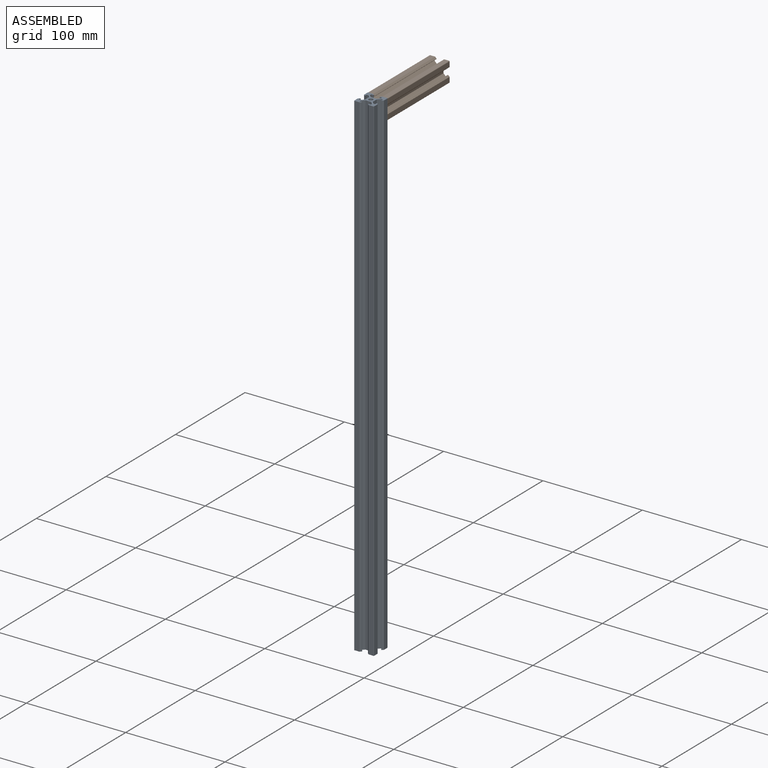
[diagram: assembled view]
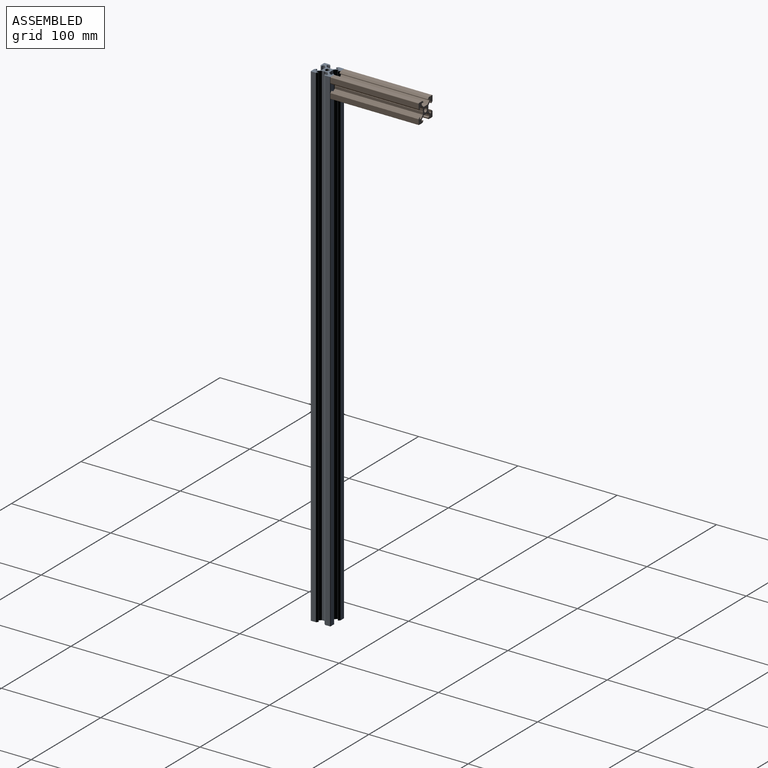
[diagram: assembled view, second angle]
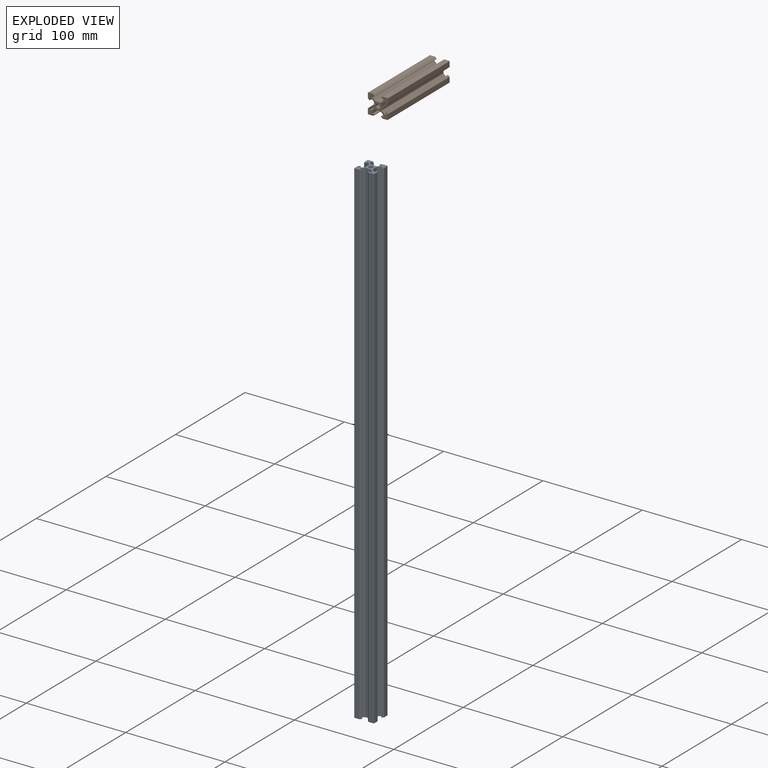
[diagram: exploded view]
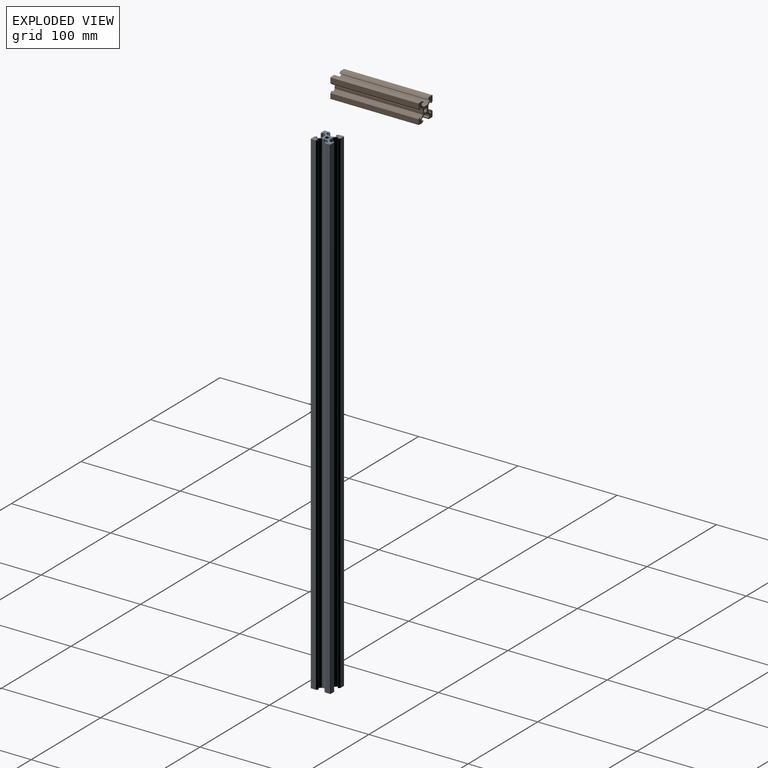
[diagram: exploded view, second angle]
ASSEMBLY  parts=2 mates=2
PART A: 71 faces, bbox 20x20x500 mm
  f0: cylinder r=2.1mm len=500mm, axis (0,0,-1), area 6597.3mm2, adj f69,f70
  f1: plane 500x0.21mm, normal (0.71,0.71,0), area 148.5mm2, adj f2,f68,f69,f70
  f2: plane 500x0.21mm, normal (0.71,-0.71,0), area 148.5mm2, adj f1,f3,f69,f70
  f3: plane 500x2.63mm, normal (1,0,0), area 1314.7mm2, adj f2,f4,f69,f70
  f4: plane 500x2.66mm, normal (0.71,-0.71,0), area 1881.4mm2, adj f3,f5,f69,f70
  f5: plane 500x1.64mm, normal (0,-1,0), area 819.7mm2, adj f4,f6,f69,f70
  f6: plane 500x2.38mm, normal (-1,0,0), area 1187.5mm2, adj f5,f7,f69,f70
  f7: plane 500x0.35mm, normal (0,-1,0), area 172.5mm2, adj f6,f8,f69,f70
  f8: plane 500x1.46mm, normal (0.71,-0.71,0), area 1028.8mm2, adj f7,f9,f69,f70
  f9: plane 500x4.92mm, normal (1,0,0), area 2460mm2, adj f8,f10,f69,f70
  f10: cylinder r=0.5mm len=500mm, axis (0,0,-1), area 392.7mm2, adj f9,f11,f69,f70
  f11: plane 500x4.92mm, normal (0,1,0), area 2460mm2, adj f10,f12,f69,f70
  f12: plane 500x1.46mm, normal (-0.71,0.71,0), area 1028.8mm2, adj f11,f13,f69,f70
  f13: plane 500x0.35mm, normal (-1,0,0), area 172.5mm2, adj f12,f14,f69,f70
  f14: plane 500x2.38mm, normal (0,-1,0), area 1187.5mm2, adj f13,f15,f69,f70
  f15: plane 500x1.64mm, normal (-1,0,0), area 819.7mm2, adj f14,f16,f69,f70
  f16: plane 500x2.66mm, normal (-0.71,0.71,0), area 1881.4mm2, adj f15,f17,f69,f70
  f17: plane 500x2.63mm, normal (0,1,0), area 1314.7mm2, adj f16,f18,f69,f70
  f18: plane 500x0.21mm, normal (-0.71,0.71,0), area 148.5mm2, adj f17,f19,f69,f70
  f19: plane 500x0.21mm, normal (0.71,0.71,0), area 148.5mm2, adj f18,f20,f69,f70
  f20: plane 500x2.63mm, normal (0,1,0), area 1314.7mm2, adj f19,f21,f69,f70
  f21: plane 500x2.66mm, normal (0.71,0.71,0), area 1881.4mm2, adj f20,f22,f69,f70
  f22: plane 500x1.64mm, normal (1,0,0), area 819.7mm2, adj f21,f23,f69,f70
  f23: plane 500x2.38mm, normal (0,-1,0), area 1187.5mm2, adj f22,f24,f69,f70
  f24: plane 500x0.35mm, normal (1,0,0), area 172.5mm2, adj f23,f25,f69,f70
  f25: plane 500x1.46mm, normal (0.71,0.71,0), area 1028.8mm2, adj f24,f26,f69,f70
  f26: plane 500x4.92mm, normal (0,1,0), area 2460mm2, adj f25,f27,f69,f70
  f27: cylinder r=0.5mm len=500mm, axis (0,0,-1), area 392.7mm2, adj f26,f28,f69,f70
  f28: plane 500x4.92mm, normal (-1,0,0), area 2460mm2, adj f27,f29,f69,f70
  f29: plane 500x1.46mm, normal (-0.71,-0.71,0), area 1028.8mm2, adj f28,f30,f69,f70
  f30: plane 500x0.35mm, normal (0,-1,0), area 172.5mm2, adj f29,f31,f69,f70
  f31: plane 500x2.38mm, normal (1,0,0), area 1187.5mm2, adj f30,f32,f69,f70
  f32: plane 500x1.64mm, normal (0,-1,0), area 819.7mm2, adj f31,f33,f69,f70
  f33: plane 500x2.66mm, normal (-0.71,-0.71,0), area 1881.4mm2, adj f32,f34,f69,f70
  f34: plane 500x2.63mm, normal (-1,0,0), area 1314.7mm2, adj f33,f35,f69,f70
  f35: plane 500x0.21mm, normal (-0.71,-0.71,0), area 148.5mm2, adj f34,f36,f69,f70
  f36: plane 500x0.21mm, normal (-0.71,0.71,0), area 148.5mm2, adj f35,f37,f69,f70
  f37: plane 500x2.63mm, normal (-1,0,0), area 1314.7mm2, adj f36,f38,f69,f70
  f38: plane 500x2.66mm, normal (-0.71,0.71,0), area 1881.4mm2, adj f37,f39,f69,f70
  f39: plane 500x1.64mm, normal (0,1,0), area 819.7mm2, adj f38,f40,f69,f70
  f40: plane 500x2.38mm, normal (1,0,0), area 1187.5mm2, adj f39,f41,f69,f70
  f41: plane 500x0.35mm, normal (0,1,0), area 172.5mm2, adj f40,f42,f69,f70
  f42: plane 500x1.46mm, normal (-0.71,0.71,0), area 1028.8mm2, adj f41,f43,f69,f70
  f43: plane 500x4.92mm, normal (-1,0,0), area 2460mm2, adj f42,f44,f69,f70
  f44: cylinder r=0.5mm len=500mm, axis (0,0,-1), area 392.7mm2, adj f43,f45,f69,f70
  f45: plane 500x4.92mm, normal (0,-1,0), area 2460mm2, adj f44,f46,f69,f70
  f46: plane 500x1.46mm, normal (0.71,-0.71,0), area 1028.8mm2, adj f45,f47,f69,f70
  f47: plane 500x0.35mm, normal (1,0,0), area 172.5mm2, adj f46,f48,f69,f70
  f48: plane 500x2.38mm, normal (0,1,0), area 1187.5mm2, adj f47,f49,f69,f70
  f49: plane 500x1.64mm, normal (1,0,0), area 819.7mm2, adj f48,f50,f69,f70
  f50: plane 500x2.66mm, normal (0.71,-0.71,0), area 1881.4mm2, adj f49,f51,f69,f70
  f51: plane 500x2.63mm, normal (0,-1,0), area 1314.7mm2, adj f50,f52,f69,f70
  f52: plane 500x0.21mm, normal (0.71,-0.71,0), area 148.5mm2, adj f51,f53,f69,f70
  f53: plane 500x0.21mm, normal (-0.71,-0.71,0), area 148.5mm2, adj f52,f54,f69,f70
  f54: plane 500x2.63mm, normal (0,-1,0), area 1314.7mm2, adj f53,f55,f69,f70
  f55: plane 500x2.66mm, normal (-0.71,-0.71,0), area 1881.4mm2, adj f54,f56,f69,f70
  f56: plane 500x1.64mm, normal (-1,0,0), area 819.7mm2, adj f55,f57,f69,f70
  f57: plane 500x2.38mm, normal (0,1,0), area 1187.5mm2, adj f56,f58,f69,f70
  f58: plane 500x0.35mm, normal (-1,0,0), area 172.5mm2, adj f57,f59,f69,f70
  f59: plane 500x1.46mm, normal (-0.71,-0.71,0), area 1028.8mm2, adj f58,f60,f69,f70
  f60: plane 500x4.92mm, normal (0,-1,0), area 2460mm2, adj f59,f61,f69,f70
  f61: cylinder r=0.5mm len=500mm, axis (0,0,-1), area 392.7mm2, adj f60,f62,f69,f70
  f62: plane 500x4.92mm, normal (1,0,0), area 2460mm2, adj f61,f63,f69,f70
  f63: plane 500x1.46mm, normal (0.71,0.71,0), area 1028.8mm2, adj f62,f64,f69,f70
  f64: plane 500x0.35mm, normal (0,1,0), area 172.5mm2, adj f63,f65,f69,f70
  f65: plane 500x2.38mm, normal (-1,0,0), area 1187.5mm2, adj f64,f66,f69,f70
  f66: plane 500x1.64mm, normal (0,1,0), area 819.7mm2, adj f65,f67,f69,f70
  f67: plane 500x2.66mm, normal (0.71,0.71,0), area 1881.4mm2, adj f66,f68,f69,f70
  f68: plane 500x2.63mm, normal (1,0,0), area 1314.7mm2, adj f1,f67,f69,f70
  f69: plane 20x20mm, normal (0,0,1), area 171.4mm2, adj f0,f1,f2,f3,f4,f5,f6,f7
  f70: plane 20x20mm, normal (0,0,-1), area 171.4mm2, adj f0,f1,f2,f3,f4,f5,f6,f7
PART B: 71 faces, bbox 20x20x88.9 mm
  f0: plane 88.9x0.21mm, normal (0.71,0.71,0), area 26.4mm2, adj f1,f63,f69,f70
  f1: plane 88.9x0.21mm, normal (0.71,-0.71,0), area 26.4mm2, adj f0,f2,f69,f70
  f2: plane 88.9x2.63mm, normal (1,0,0), area 233.7mm2, adj f1,f3,f69,f70
  f3: plane 88.9x2.66mm, normal (0.71,-0.71,0), area 334.5mm2, adj f2,f4,f69,f70
  f4: plane 88.9x1.64mm, normal (0,-1,0), area 145.7mm2, adj f3,f5,f69,f70
  f5: plane 88.9x2.38mm, normal (-1,0,0), area 211.1mm2, adj f4,f6,f69,f70
  f6: plane 88.9x0.35mm, normal (0,-1,0), area 30.7mm2, adj f5,f7,f69,f70
  f7: plane 88.9x1.46mm, normal (0.71,-0.71,0), area 182.9mm2, adj f6,f8,f69,f70
  f8: plane 88.9x4.92mm, normal (1,0,0), area 437.4mm2, adj f7,f66,f69,f70
  f9: plane 88.9x4.92mm, normal (0,1,0), area 437.4mm2, adj f10,f66,f69,f70
  f10: plane 88.9x1.46mm, normal (-0.71,0.71,0), area 182.9mm2, adj f9,f11,f69,f70
  f11: plane 88.9x0.35mm, normal (-1,0,0), area 30.7mm2, adj f10,f12,f69,f70
  f12: plane 88.9x2.38mm, normal (0,-1,0), area 211.1mm2, adj f11,f13,f69,f70
  f13: plane 88.9x1.64mm, normal (-1,0,0), area 145.7mm2, adj f12,f14,f69,f70
  f14: plane 88.9x2.66mm, normal (-0.71,0.71,0), area 334.5mm2, adj f13,f15,f69,f70
  f15: plane 88.9x2.63mm, normal (0,1,0), area 233.7mm2, adj f14,f16,f69,f70
  f16: plane 88.9x0.21mm, normal (-0.71,0.71,0), area 26.4mm2, adj f15,f17,f69,f70
  f17: plane 88.9x0.21mm, normal (0.71,0.71,0), area 26.4mm2, adj f16,f18,f69,f70
  f18: plane 88.9x2.63mm, normal (0,1,0), area 233.7mm2, adj f17,f19,f69,f70
  f19: plane 88.9x2.66mm, normal (0.71,0.71,0), area 334.5mm2, adj f18,f20,f69,f70
  f20: plane 88.9x1.64mm, normal (1,0,0), area 145.7mm2, adj f19,f21,f69,f70
  f21: plane 88.9x2.38mm, normal (0,-1,0), area 211.1mm2, adj f20,f22,f69,f70
  f22: plane 88.9x0.35mm, normal (1,0,0), area 30.7mm2, adj f21,f23,f69,f70
  f23: plane 88.9x1.46mm, normal (0.71,0.71,0), area 182.9mm2, adj f22,f24,f69,f70
  f24: plane 88.9x4.92mm, normal (0,1,0), area 437.4mm2, adj f23,f67,f69,f70
  f25: plane 88.9x4.92mm, normal (-1,0,0), area 437.4mm2, adj f26,f67,f69,f70
  f26: plane 88.9x1.46mm, normal (-0.71,-0.71,0), area 182.9mm2, adj f25,f27,f69,f70
  f27: plane 88.9x0.35mm, normal (0,-1,0), area 30.7mm2, adj f26,f28,f69,f70
  f28: plane 88.9x2.38mm, normal (1,0,0), area 211.1mm2, adj f27,f29,f69,f70
  f29: plane 88.9x1.64mm, normal (0,-1,0), area 145.7mm2, adj f28,f30,f69,f70
  f30: plane 88.9x2.66mm, normal (-0.71,-0.71,0), area 334.5mm2, adj f29,f31,f69,f70
  f31: plane 88.9x2.63mm, normal (-1,0,0), area 233.7mm2, adj f30,f32,f69,f70
  f32: plane 88.9x0.21mm, normal (-0.71,-0.71,0), area 26.4mm2, adj f31,f33,f69,f70
  f33: plane 88.9x0.21mm, normal (-0.71,0.71,0), area 26.4mm2, adj f32,f34,f69,f70
  f34: plane 88.9x2.63mm, normal (-1,0,0), area 233.7mm2, adj f33,f35,f69,f70
  f35: plane 88.9x2.66mm, normal (-0.71,0.71,0), area 334.5mm2, adj f34,f36,f69,f70
  f36: plane 88.9x1.64mm, normal (0,1,0), area 145.7mm2, adj f35,f37,f69,f70
  f37: plane 88.9x2.38mm, normal (1,0,0), area 211.1mm2, adj f36,f38,f69,f70
  f38: plane 88.9x0.35mm, normal (0,1,0), area 30.7mm2, adj f37,f39,f69,f70
  f39: plane 88.9x1.46mm, normal (-0.71,0.71,0), area 182.9mm2, adj f38,f40,f69,f70
  f40: plane 88.9x4.92mm, normal (-1,0,0), area 437.4mm2, adj f39,f64,f69,f70
  f41: plane 88.9x4.92mm, normal (0,-1,0), area 437.4mm2, adj f42,f64,f69,f70
  f42: plane 88.9x1.46mm, normal (0.71,-0.71,0), area 182.9mm2, adj f41,f43,f69,f70
  f43: plane 88.9x0.35mm, normal (1,0,0), area 30.7mm2, adj f42,f44,f69,f70
  f44: plane 88.9x2.38mm, normal (0,1,0), area 211.1mm2, adj f43,f45,f69,f70
  f45: plane 88.9x1.64mm, normal (1,0,0), area 145.7mm2, adj f44,f46,f69,f70
  f46: plane 88.9x2.66mm, normal (0.71,-0.71,0), area 334.5mm2, adj f45,f47,f69,f70
  f47: plane 88.9x2.63mm, normal (0,-1,0), area 233.7mm2, adj f46,f48,f69,f70
  f48: plane 88.9x0.21mm, normal (0.71,-0.71,0), area 26.4mm2, adj f47,f49,f69,f70
  f49: plane 88.9x0.21mm, normal (-0.71,-0.71,0), area 26.4mm2, adj f48,f50,f69,f70
  f50: plane 88.9x2.63mm, normal (0,-1,0), area 233.7mm2, adj f49,f51,f69,f70
  f51: plane 88.9x2.66mm, normal (-0.71,-0.71,0), area 334.5mm2, adj f50,f52,f69,f70
  f52: plane 88.9x1.64mm, normal (-1,0,0), area 145.7mm2, adj f51,f53,f69,f70
  f53: plane 88.9x2.38mm, normal (0,1,0), area 211.1mm2, adj f52,f54,f69,f70
  f54: plane 88.9x0.35mm, normal (-1,0,0), area 30.7mm2, adj f53,f55,f69,f70
  f55: plane 88.9x1.46mm, normal (-0.71,-0.71,0), area 182.9mm2, adj f54,f56,f69,f70
  f56: plane 88.9x4.92mm, normal (0,-1,0), area 437.4mm2, adj f55,f68,f69,f70
  f57: plane 88.9x4.92mm, normal (1,0,0), area 437.4mm2, adj f58,f68,f69,f70
  f58: plane 88.9x1.46mm, normal (0.71,0.71,0), area 182.9mm2, adj f57,f59,f69,f70
  f59: plane 88.9x0.35mm, normal (0,1,0), area 30.7mm2, adj f58,f60,f69,f70
  f60: plane 88.9x2.38mm, normal (-1,0,0), area 211.1mm2, adj f59,f61,f69,f70
  f61: plane 88.9x1.64mm, normal (0,1,0), area 145.7mm2, adj f60,f62,f69,f70
  f62: plane 88.9x2.66mm, normal (0.71,0.71,0), area 334.5mm2, adj f61,f63,f69,f70
  f63: plane 88.9x2.63mm, normal (1,0,0), area 233.7mm2, adj f0,f62,f69,f70
  f64: cylinder r=0.5mm len=88.9mm, axis (0,0,-1), area 69.8mm2, adj f40,f41,f69,f70
  f65: cylinder r=2.1mm len=88.9mm, axis (0,0,-1), area 1173mm2, adj f69,f70
  f66: cylinder r=0.5mm len=88.9mm, axis (0,0,-1), area 69.8mm2, adj f8,f9,f69,f70
  f67: cylinder r=0.5mm len=88.9mm, axis (0,0,-1), area 69.8mm2, adj f24,f25,f69,f70
  f68: cylinder r=0.5mm len=88.9mm, axis (0,0,-1), area 69.8mm2, adj f56,f57,f69,f70
  f69: plane 20x20mm, normal (0,0,-1), area 171.4mm2, adj f0,f1,f2,f3,f4,f5,f6,f7
  f70: plane 20x20mm, normal (0,0,1), area 171.4mm2, adj f0,f1,f2,f3,f4,f5,f6,f7
PLACE A t=(57.13,28.28,242.47)mm
PLACE B rot(axis=(-1,0,0),90deg) t=(57.13,38.28,732.47)mm
MATE planar B.f40 <-> A.f28  axis (-1,0,0) through (47.13,38.28,737.05)mm
MATE planar B.f65 <-> A.f26  axis (0,-1,0) through (57.13,38.28,732.47)mm
